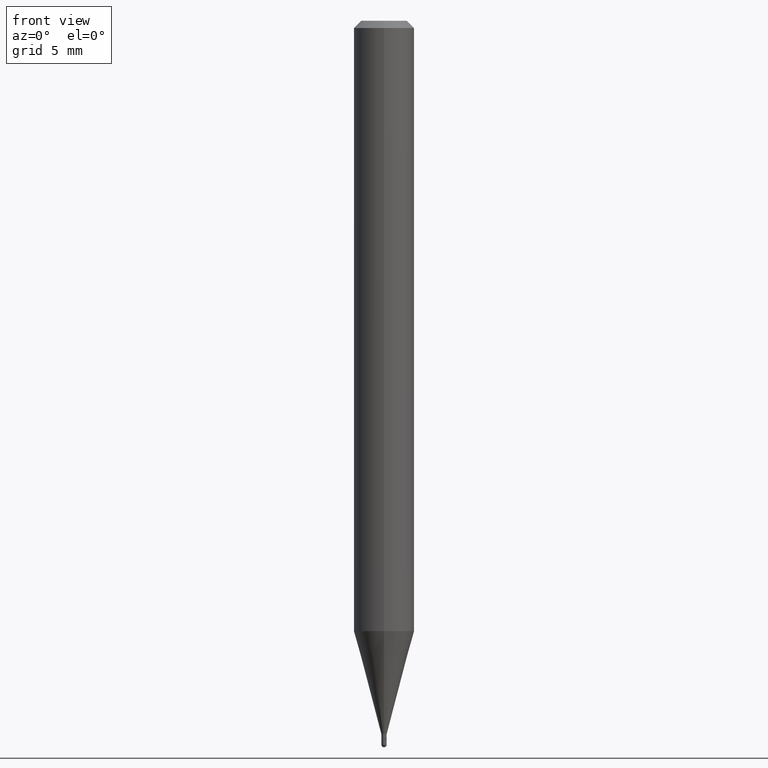
[diagram: clean part render]
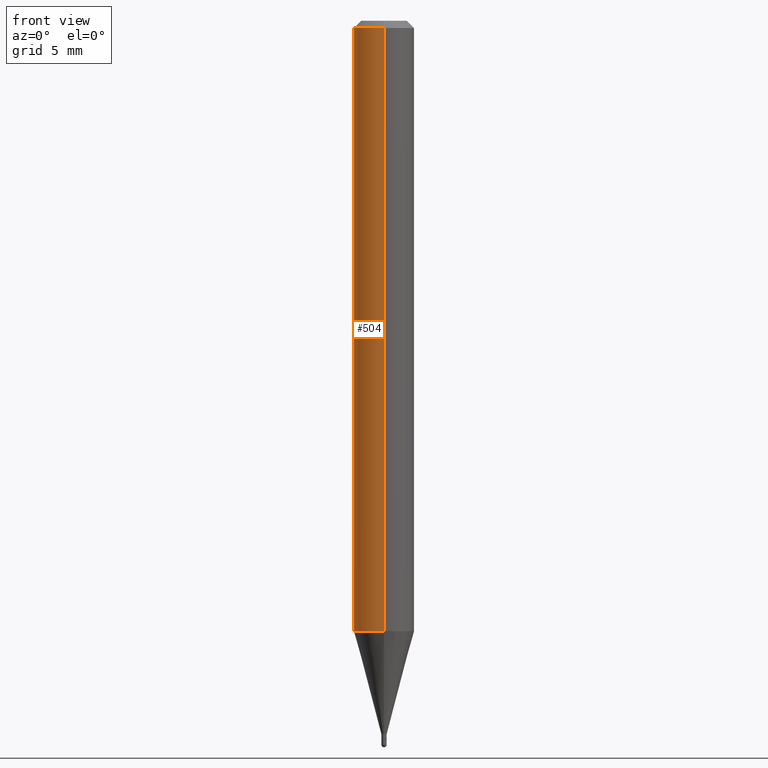
[diagram: same view with one face highlighted and labeled with its STEP entity id]
A machine part, front view. The second image highlights one B-rep face of the part: STEP entity #504.
In plain terms, the highlighted cylindrical surface (edge-blend (fillet) strip) has radius 1.5875 mm, axis along (-0, 0, 1).
Its self-contained STEP definition (entity closure, byte-faithful):
#19 = DIRECTION ( 'NONE',  ( -2.445457932852582401E-29, 3.491496910074235164E-15, 1.000000000000000000 ) ) ;
#21 = EDGE_CURVE ( 'NONE', #276, #475, #496, .T. ) ;
#26 = CARTESIAN_POINT ( 'NONE',  ( 3.668186899278815115E-31, -5.237245365111268929E-17, -0.01499999999999976179 ) ) ;
#35 = CARTESIAN_POINT ( 'NONE',  ( -4.364351673553608052E-16, -0.06250000000000439926, -1.260273103968574615 ) ) ;
#46 = DIRECTION ( 'NONE',  ( -2.445457932852582401E-29, 3.491496910074235164E-15, 1.000000000000000000 ) ) ;
#59 = VECTOR ( 'NONE', #46, 39.37007874015748143 ) ;
#85 = EDGE_CURVE ( 'NONE', #479, #475, #497, .T. ) ;
#89 = VECTOR ( 'NONE', #19, 39.37007874015748143 ) ;
#98 = ORIENTED_EDGE ( 'NONE', *, *, #85, .F. ) ;
#105 = CARTESIAN_POINT ( 'NONE',  ( 3.081944859660698736E-29, -4.400239648355943616E-15, -1.260273103968574837 ) ) ;
#110 = DIRECTION ( 'NONE',  ( -2.445457932852582401E-29, 3.491496910074235164E-15, 1.000000000000000000 ) ) ;
#143 = CARTESIAN_POINT ( 'NONE',  ( 4.440892098500935790E-16, 0.06249999999999995143, -0.01499999999999997863 ) ) ;
#146 = AXIS2_PLACEMENT_3D ( 'NONE', #26, #177, #299 ) ;
#149 = CARTESIAN_POINT ( 'NONE',  ( -4.364351673553912750E-16, -0.06250000000000005551, -0.01499999999999954321 ) ) ;
#157 = VERTEX_POINT ( 'NONE', #469 ) ;
#173 = EDGE_CURVE ( 'NONE', #157, #276, #473, .T. ) ;
#177 = DIRECTION ( 'NONE',  ( -2.445457932852582401E-29, 3.491496910074235164E-15, 1.000000000000000000 ) ) ;
#184 = CYLINDRICAL_SURFACE ( 'NONE', #434, 0.06250000000000000000 ) ;
#196 = ORIENTED_EDGE ( 'NONE', *, *, #173, .T. ) ;
#201 = ORIENTED_EDGE ( 'NONE', *, *, #409, .F. ) ;
#211 = CARTESIAN_POINT ( 'NONE',  ( -4.364351673553916201E-16, -0.06250000000000000000, 2.182185568796396731E-16 ) ) ;
#233 = DIRECTION ( 'NONE',  ( -6.982962677686265922E-15, -1.000000000000000000, 4.370956789862821150E-15 ) ) ;
#241 = CARTESIAN_POINT ( 'NONE',  ( 4.440892098500625669E-16, 0.06250000000000000000, -2.182185568796396731E-16 ) ) ;
#246 = AXIS2_PLACEMENT_3D ( 'NONE', #105, #110, #233 ) ;
#276 = VERTEX_POINT ( 'NONE', #35 ) ;
#283 = EDGE_LOOP ( 'NONE', ( #201, #196, #375, #98 ) ) ;
#294 = LINE ( 'NONE', #241, #59 ) ;
#299 = DIRECTION ( 'NONE',  ( -6.982962677686265922E-15, -1.000000000000000000, 3.483106191921935554E-15 ) ) ;
#351 = DIRECTION ( 'NONE',  ( -6.982962677686265922E-15, -1.000000000000000000, 3.491496910074234769E-15 ) ) ;
#375 = ORIENTED_EDGE ( 'NONE', *, *, #21, .T. ) ;
#380 = CARTESIAN_POINT ( 'NONE',  ( 0.000000000000000000, 0.000000000000000000, 0.000000000000000000 ) ) ;
#409 = EDGE_CURVE ( 'NONE', #157, #479, #294, .T. ) ;
#434 = AXIS2_PLACEMENT_3D ( 'NONE', #380, #462, #351 ) ;
#462 = DIRECTION ( 'NONE',  ( -2.445457932852582401E-29, 3.491496910074235164E-15, 1.000000000000000000 ) ) ;
#469 = CARTESIAN_POINT ( 'NONE',  ( 4.440892098500932831E-16, 0.06249999999999559380, -1.260273103968575059 ) ) ;
#473 = CIRCLE ( 'NONE', #246, 0.06250000000000000000 ) ;
#475 = VERTEX_POINT ( 'NONE', #149 ) ;
#479 = VERTEX_POINT ( 'NONE', #143 ) ;
#496 = LINE ( 'NONE', #211, #89 ) ;
#497 = CIRCLE ( 'NONE', #146, 0.06250000000000000000 ) ;
#504 = ADVANCED_FACE ( 'NONE', ( #505 ), #184, .T. ) ;
#505 = FACE_OUTER_BOUND ( 'NONE', #283, .T. ) ;